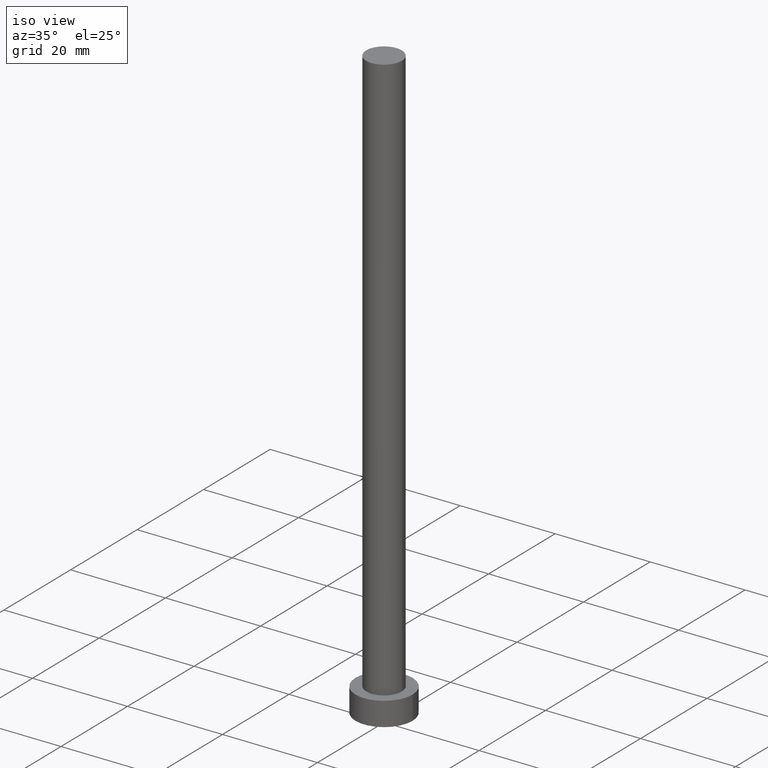
[diagram: clean part render]
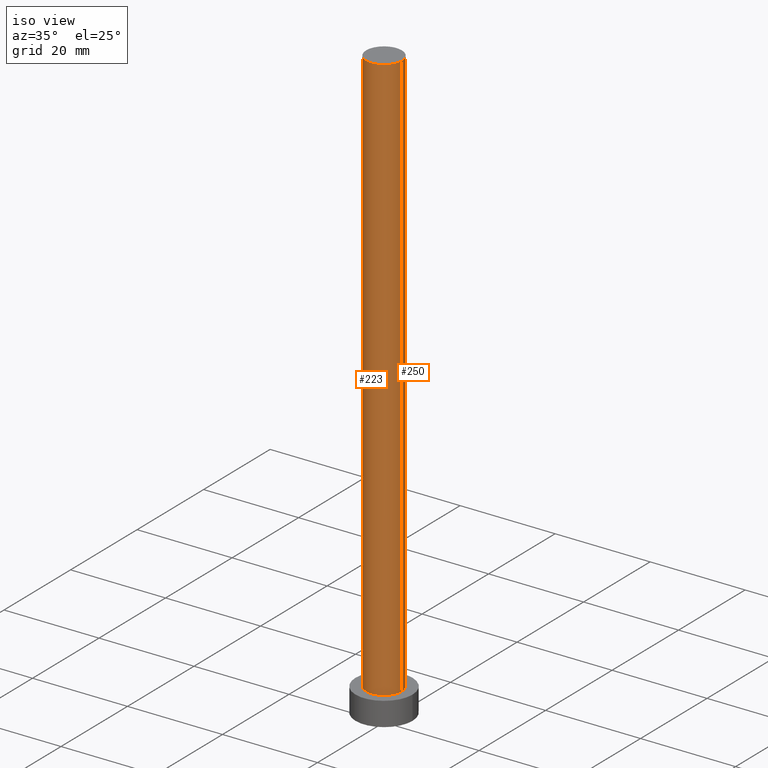
[diagram: same view with one multi-face feature highlighted, each face labeled with its STEP entity id]
A machine part, iso view. The highlighted faces form ONE feature: a constant-radius fillet chain: 2 tangent blend faces with common blend radius 3.75 mm. The faces share edges in the B-rep.
Their STEP definitions:
[1] entity #223 (Cylinder):
#5 = VERTEX_POINT ( 'NONE', #141 ) ;
#15 = EDGE_CURVE ( 'NONE', #145, #5, #165, .T. ) ;
#20 = CYLINDRICAL_SURFACE ( 'NONE', #178, 3.750000000000000000 ) ;
#24 = LINE ( 'NONE', #58, #126 ) ;
#28 = DIRECTION ( 'NONE',  ( 1.000000000000000000, 0.000000000000000000, 0.000000000000000000 ) ) ;
#29 = VECTOR ( 'NONE', #222, 1000.000000000000000 ) ;
#40 = DIRECTION ( 'NONE',  ( -0.000000000000000000, -0.000000000000000000, -1.000000000000000000 ) ) ;
#41 = CARTESIAN_POINT ( 'NONE',  ( 0.000000000000000000, 0.000000000000000000, 125.0000000000000000 ) ) ;
#58 = CARTESIAN_POINT ( 'NONE',  ( -3.750000000000000000, 0.000000000000000000, 125.0000000000000000 ) ) ;
#60 = DIRECTION ( 'NONE',  ( 0.000000000000000000, 0.000000000000000000, 1.000000000000000000 ) ) ;
#63 = EDGE_LOOP ( 'NONE', ( #254, #148, #110, #67 ) ) ;
#67 = ORIENTED_EDGE ( 'NONE', *, *, #245, .T. ) ;
#69 = FACE_OUTER_BOUND ( 'NONE', #63, .T. ) ;
#72 = DIRECTION ( 'NONE',  ( -1.000000000000000000, 0.000000000000000000, 0.000000000000000000 ) ) ;
#91 = CARTESIAN_POINT ( 'NONE',  ( -3.750000000000000000, 0.000000000000000000, 125.0000000000000000 ) ) ;
#92 = CIRCLE ( 'NONE', #121, 3.750000000000000000 ) ;
#97 = DIRECTION ( 'NONE',  ( 1.000000000000000000, 0.000000000000000000, 0.000000000000000000 ) ) ;
#106 = VERTEX_POINT ( 'NONE', #163 ) ;
#110 = ORIENTED_EDGE ( 'NONE', *, *, #190, .T. ) ;
#112 = EDGE_CURVE ( 'NONE', #5, #106, #155, .T. ) ;
#121 = AXIS2_PLACEMENT_3D ( 'NONE', #247, #159, #28 ) ;
#126 = VECTOR ( 'NONE', #40, 1000.000000000000000 ) ;
#141 = CARTESIAN_POINT ( 'NONE',  ( 3.750000000000000000, 4.592425496802573972E-16, 125.0000000000000000 ) ) ;
#145 = VERTEX_POINT ( 'NONE', #91 ) ;
#148 = ORIENTED_EDGE ( 'NONE', *, *, #15, .F. ) ;
#155 = LINE ( 'NONE', #243, #29 ) ;
#159 = DIRECTION ( 'NONE',  ( 0.000000000000000000, 0.000000000000000000, 1.000000000000000000 ) ) ;
#163 = CARTESIAN_POINT ( 'NONE',  ( 3.750000000000000000, 4.592425496802573972E-16, 5.000000000000000000 ) ) ;
#165 = CIRCLE ( 'NONE', #214, 3.750000000000000000 ) ;
#173 = DIRECTION ( 'NONE',  ( -0.000000000000000000, -0.000000000000000000, -1.000000000000000000 ) ) ;
#178 = AXIS2_PLACEMENT_3D ( 'NONE', #210, #173, #72 ) ;
#190 = EDGE_CURVE ( 'NONE', #145, #215, #24, .T. ) ;
#199 = CARTESIAN_POINT ( 'NONE',  ( -3.750000000000000000, 0.000000000000000000, 5.000000000000000000 ) ) ;
#210 = CARTESIAN_POINT ( 'NONE',  ( 0.000000000000000000, 0.000000000000000000, 125.0000000000000000 ) ) ;
#214 = AXIS2_PLACEMENT_3D ( 'NONE', #41, #60, #97 ) ;
#215 = VERTEX_POINT ( 'NONE', #199 ) ;
#222 = DIRECTION ( 'NONE',  ( -0.000000000000000000, -0.000000000000000000, -1.000000000000000000 ) ) ;
#223 = ADVANCED_FACE ( 'NONE', ( #69 ), #20, .T. ) ;
#243 = CARTESIAN_POINT ( 'NONE',  ( 3.750000000000000000, 4.592425496802573972E-16, 125.0000000000000000 ) ) ;
#245 = EDGE_CURVE ( 'NONE', #215, #106, #92, .T. ) ;
#247 = CARTESIAN_POINT ( 'NONE',  ( 0.000000000000000000, 0.000000000000000000, 5.000000000000000000 ) ) ;
#254 = ORIENTED_EDGE ( 'NONE', *, *, #112, .F. ) ;
[2] entity #250 (Cylinder):
#5 = VERTEX_POINT ( 'NONE', #141 ) ;
#7 = EDGE_CURVE ( 'NONE', #5, #145, #94, .T. ) ;
#12 = CYLINDRICAL_SURFACE ( 'NONE', #98, 3.750000000000000000 ) ;
#14 = DIRECTION ( 'NONE',  ( 0.000000000000000000, 0.000000000000000000, 1.000000000000000000 ) ) ;
#24 = LINE ( 'NONE', #58, #126 ) ;
#27 = CARTESIAN_POINT ( 'NONE',  ( 0.000000000000000000, 0.000000000000000000, 125.0000000000000000 ) ) ;
#29 = VECTOR ( 'NONE', #222, 1000.000000000000000 ) ;
#40 = DIRECTION ( 'NONE',  ( -0.000000000000000000, -0.000000000000000000, -1.000000000000000000 ) ) ;
#58 = CARTESIAN_POINT ( 'NONE',  ( -3.750000000000000000, 0.000000000000000000, 125.0000000000000000 ) ) ;
#77 = DIRECTION ( 'NONE',  ( 1.000000000000000000, 0.000000000000000000, 0.000000000000000000 ) ) ;
#91 = CARTESIAN_POINT ( 'NONE',  ( -3.750000000000000000, 0.000000000000000000, 125.0000000000000000 ) ) ;
#94 = CIRCLE ( 'NONE', #102, 3.750000000000000000 ) ;
#95 = CARTESIAN_POINT ( 'NONE',  ( 0.000000000000000000, 0.000000000000000000, 125.0000000000000000 ) ) ;
#98 = AXIS2_PLACEMENT_3D ( 'NONE', #95, #182, #124 ) ;
#102 = AXIS2_PLACEMENT_3D ( 'NONE', #27, #14, #77 ) ;
#106 = VERTEX_POINT ( 'NONE', #163 ) ;
#112 = EDGE_CURVE ( 'NONE', #5, #106, #155, .T. ) ;
#124 = DIRECTION ( 'NONE',  ( -1.000000000000000000, 0.000000000000000000, 0.000000000000000000 ) ) ;
#126 = VECTOR ( 'NONE', #40, 1000.000000000000000 ) ;
#127 = FACE_OUTER_BOUND ( 'NONE', #135, .T. ) ;
#135 = EDGE_LOOP ( 'NONE', ( #228, #152, #251, #146 ) ) ;
#139 = CARTESIAN_POINT ( 'NONE',  ( 0.000000000000000000, 0.000000000000000000, 5.000000000000000000 ) ) ;
#141 = CARTESIAN_POINT ( 'NONE',  ( 3.750000000000000000, 4.592425496802573972E-16, 125.0000000000000000 ) ) ;
#145 = VERTEX_POINT ( 'NONE', #91 ) ;
#146 = ORIENTED_EDGE ( 'NONE', *, *, #190, .F. ) ;
#152 = ORIENTED_EDGE ( 'NONE', *, *, #112, .T. ) ;
#155 = LINE ( 'NONE', #243, #29 ) ;
#163 = CARTESIAN_POINT ( 'NONE',  ( 3.750000000000000000, 4.592425496802573972E-16, 5.000000000000000000 ) ) ;
#182 = DIRECTION ( 'NONE',  ( -0.000000000000000000, -0.000000000000000000, -1.000000000000000000 ) ) ;
#187 = EDGE_CURVE ( 'NONE', #106, #215, #203, .T. ) ;
#190 = EDGE_CURVE ( 'NONE', #145, #215, #24, .T. ) ;
#199 = CARTESIAN_POINT ( 'NONE',  ( -3.750000000000000000, 0.000000000000000000, 5.000000000000000000 ) ) ;
#203 = CIRCLE ( 'NONE', #236, 3.750000000000000000 ) ;
#215 = VERTEX_POINT ( 'NONE', #199 ) ;
#219 = DIRECTION ( 'NONE',  ( 1.000000000000000000, 0.000000000000000000, 0.000000000000000000 ) ) ;
#222 = DIRECTION ( 'NONE',  ( -0.000000000000000000, -0.000000000000000000, -1.000000000000000000 ) ) ;
#228 = ORIENTED_EDGE ( 'NONE', *, *, #7, .F. ) ;
#236 = AXIS2_PLACEMENT_3D ( 'NONE', #139, #239, #219 ) ;
#239 = DIRECTION ( 'NONE',  ( 0.000000000000000000, 0.000000000000000000, 1.000000000000000000 ) ) ;
#243 = CARTESIAN_POINT ( 'NONE',  ( 3.750000000000000000, 4.592425496802573972E-16, 125.0000000000000000 ) ) ;
#250 = ADVANCED_FACE ( 'NONE', ( #127 ), #12, .T. ) ;
#251 = ORIENTED_EDGE ( 'NONE', *, *, #187, .T. ) ;